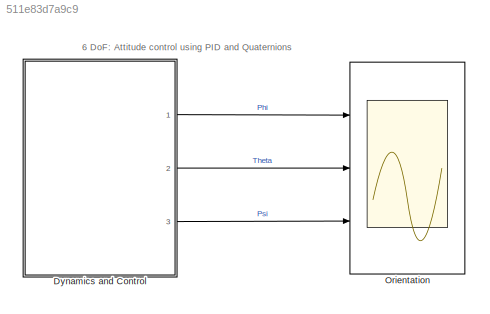
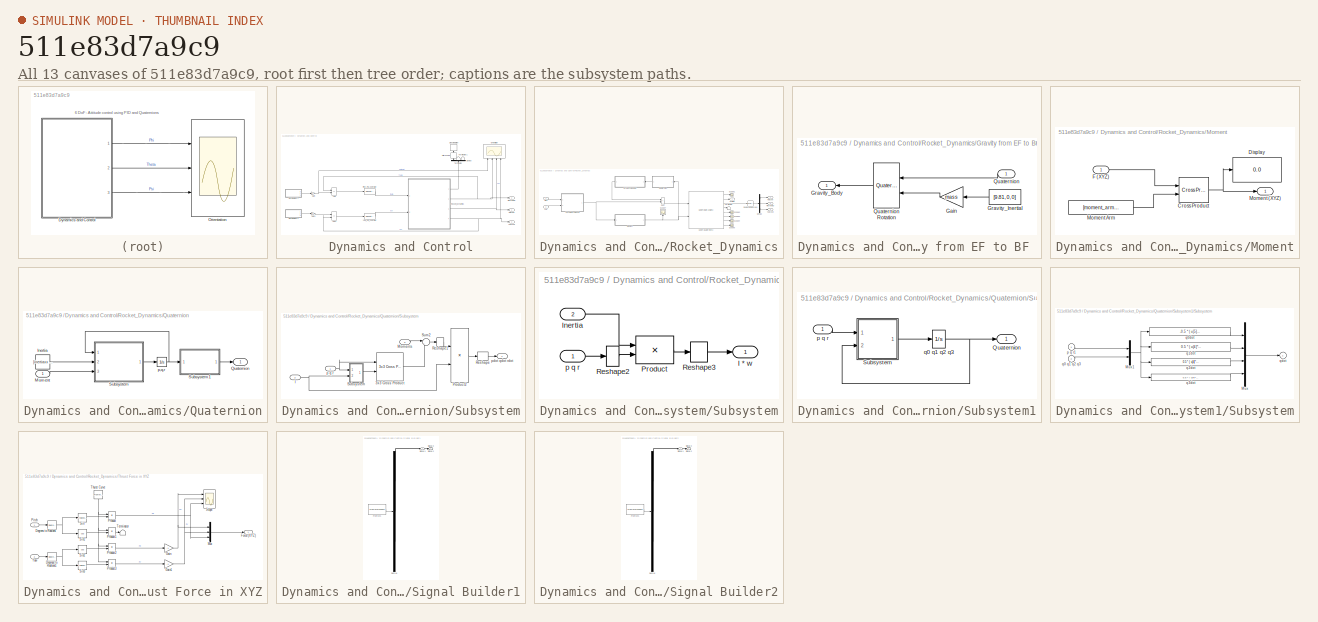
[diagram: thumbnail index - all 13 canvases of the model, root first then tree order]
MODEL slx_511e83d7a9c9
KIND model
CONFIG AbsTol = auto
CONFIG EnableMultiTasking = off
CONFIG FixedStep = auto
CONFIG MaxStep = auto
CONFIG MinStep = auto
CONFIG RelTol = 1e-3
CONFIG SampleTimeConstraint = Unconstrained
CONFIG SolverName = VariableStepAuto
CONFIG StartTime = 0.0
CONFIG StopTime = 4
BLOCK [SubSystem] Dynamics and Control
  Ports = [0, 3]
  RequestExecContextInheritance = off
BLOCK [Sum] Dynamics and Control/Add
  IconShape = rectangular
  Inputs = -+
  Ports = [2, 1]
BLOCK [Sum] Dynamics and Control/Add1
  IconShape = rectangular
  Inputs = +-
  Ports = [2, 1]
BLOCK [Demux] Dynamics and Control/Demux
  NameLocation = right
  Outputs = 3
  Ports = [1, 3]
BLOCK [Gain] Dynamics and Control/Gain
BLOCK [Gain] Dynamics and Control/Gain1
BLOCK [HitCross] Dynamics and Control/Hit Crossing
  HitCrossingDirection = falling
  NameLocation = right
  Ports = [1, 1]
BLOCK [Scope] Dynamics and Control/Orientation
  Floating = off
  NameLocation = top
  NumInputPorts = 4
  Ports = [4]
  ScopeSpecificationString = Simulink.scopes.TimeScopeBlockCfg('CurrentConfiguration', extmgr.ConfigurationSet(extmgr.Configuration('Core','General UI',true),extmgr.Configuration('Core','Source UI',true),extmgr.Configuration('Sources','WiredSimulink',true,'DataLoggingVariableName','ScopeData2'),extmgr.Configuration('Visuals','Time Domain',true,'SerializedDisplays',{struct('MinYLimReal','-0.62535','MaxYLimReal','5.62813','YLab...<+1547ch>
BLOCK [Outport] Dynamics and Control/Pitch (theta)
  Port = 2
BLOCK [Reference] Dynamics and Control/Pitch_PID_Controller  REF=pid_lib/PID Controller
  Ports = [1, 1]
  SourceBlock = pid_lib/PID Controller
  SourceProductBaseCode = SL
  SourceType = PID 1dof
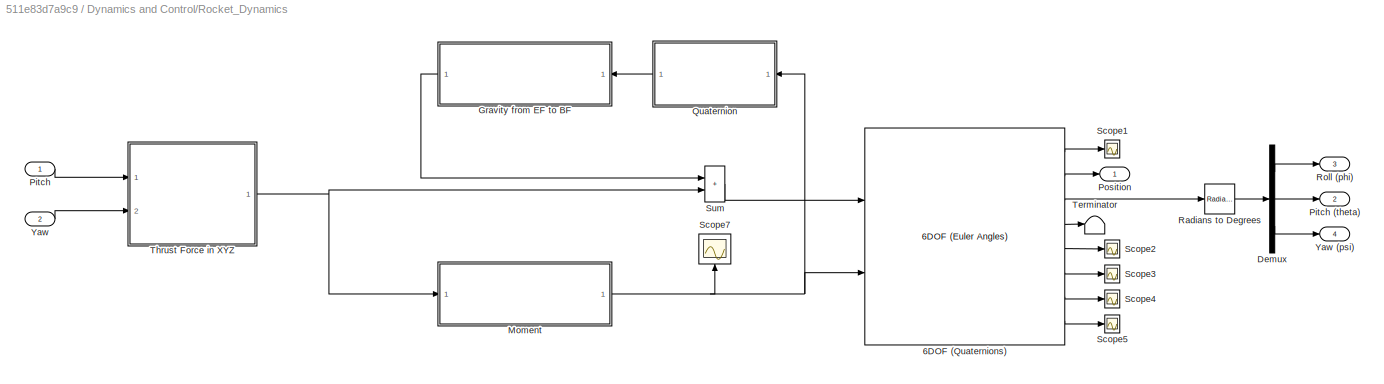
BLOCK [SubSystem] Dynamics and Control/Rocket_Dynamics
  Ports = [2, 4]
  RequestExecContextInheritance = off
BLOCK [Reference] Dynamics and Control/Rocket_Dynamics/6DOF (Quaternions)   REF=shared6dof/6DOF (Euler Angles)
  Ports = [2, 8]
  SourceBlock = shared6dof/6DOF (Euler Angles)
  SourceProductBaseCode = AE,PW,MT,UV,VE,VP
  SourceType = 6DOF EoM (Body Axis)
BLOCK [Demux] Dynamics and Control/Rocket_Dynamics/Demux
  Outputs = 3
  Ports = [1, 3]
BLOCK [SubSystem] Dynamics and Control/Rocket_Dynamics/Gravity from EF to BF 
  Ports = [1, 1]
  RequestExecContextInheritance = off
BLOCK [Gain] Dynamics and Control/Rocket_Dynamics/Gravity from EF to BF /Gain
  Gain = mass
  NameLocation = top
BLOCK [Outport] Dynamics and Control/Rocket_Dynamics/Gravity from EF to BF /Gravity_Body
BLOCK [Constant] Dynamics and Control/Rocket_Dynamics/Gravity from EF to BF /Gravity_Inertial
  Value = [9.81, 0, 0]
BLOCK [Inport] Dynamics and Control/Rocket_Dynamics/Gravity from EF to BF /Quaternion
  NameLocation = top
BLOCK [Reference] Dynamics and Control/Rocket_Dynamics/Gravity from EF to BF /Quaternion Rotation  REF=aerolibutil/Quaternion
Rotation
  NameLocation = top
  Ports = [2, 1]
  SourceBlock = aerolibutil/Quaternion\nRotation
  SourceProductBaseCode = AE
  SourceType = Quaternion Rotation
BLOCK [SubSystem] Dynamics and Control/Rocket_Dynamics/Moment
  Ports = [1, 1]
  RequestExecContextInheritance = off
BLOCK [Reference] Dynamics and Control/Rocket_Dynamics/Moment/Cross Product  REF=vrlib/Utilities/Cross Product
  Ports = [2, 1]
  SourceBlock = vrlib/Utilities/Cross Product
  SourceProductBaseCode = SL
  SourceType = Cross Product
BLOCK [Display] Dynamics and Control/Rocket_Dynamics/Moment/Display
  Decimation = 1
  Ports = [1]
BLOCK [Inport] Dynamics and Control/Rocket_Dynamics/Moment/F (XYZ)
BLOCK [Outport] Dynamics and Control/Rocket_Dynamics/Moment/Moment (XYZ)
BLOCK [Constant] Dynamics and Control/Rocket_Dynamics/Moment/Moment Arm
  Value = [moment_arm, 0, 0]
BLOCK [Inport] Dynamics and Control/Rocket_Dynamics/Pitch
BLOCK [Outport] Dynamics and Control/Rocket_Dynamics/Pitch (theta)
  Port = 2
BLOCK [Outport] Dynamics and Control/Rocket_Dynamics/Position
BLOCK [SubSystem] Dynamics and Control/Rocket_Dynamics/Quaternion
  Ports = [1, 1]
  RequestExecContextInheritance = off
BLOCK [Constant] Dynamics and Control/Rocket_Dynamics/Quaternion/Inertia
  NameLocation = top
  Value = [inertiaxx inertiayy inertiazz].*eye(3)
BLOCK [Inport] Dynamics and Control/Rocket_Dynamics/Quaternion/Moment
  PortDimensions = 3
  Unit = N*m
BLOCK [Outport] Dynamics and Control/Rocket_Dynamics/Quaternion/Quaternion
  VectorParamsAs1DForOutWhenUnconnected = off
BLOCK [SubSystem] Dynamics and Control/Rocket_Dynamics/Quaternion/Subsystem
  Ports = [3, 1]
  RequestExecContextInheritance = off
BLOCK [Reference] Dynamics and Control/Rocket_Dynamics/Quaternion/Subsystem/3x3 Cross Product  REF=sharedutil/3x3 Cross Product
  Ports = [2, 1]
  SourceBlock = sharedutil/3x3 Cross Product
  SourceProductBaseCode = AE,PW,MT,UV,VE,VP
  SourceType = CrossProduct
BLOCK [Inport] Dynamics and Control/Rocket_Dynamics/Quaternion/Subsystem/I
  Port = 2
BLOCK [Inport] Dynamics and Control/Rocket_Dynamics/Quaternion/Subsystem/Moments
  Port = 3
BLOCK [Product] Dynamics and Control/Rocket_Dynamics/Quaternion/Subsystem/Product2
  Inputs = */
  Multiplication = Matrix(*)
  NameLocation = top
  OutDataTypeStr = Inherit: Same as first input
  Ports = [2, 1]
  SaturateOnIntegerOverflow = on
BLOCK [Reshape] Dynamics and Control/Rocket_Dynamics/Quaternion/Subsystem/Reshape
  Ports = [1, 1]
BLOCK [Reshape] Dynamics and Control/Rocket_Dynamics/Quaternion/Subsystem/Reshape1
  OutputDimensionality = Row vector (2-D)
  Ports = [1, 1]
BLOCK [SubSystem] Dynamics and Control/Rocket_Dynamics/Quaternion/Subsystem/Subsystem
  Ports = [2, 1]
  RequestExecContextInheritance = off
BLOCK [Outport] Dynamics and Control/Rocket_Dynamics/Quaternion/Subsystem/Subsystem/I * w
  VectorParamsAs1DForOutWhenUnconnected = off
BLOCK [Inport] Dynamics and Control/Rocket_Dynamics/Quaternion/Subsystem/Subsystem/Inertia
  Port = 2
BLOCK [Product] Dynamics and Control/Rocket_Dynamics/Quaternion/Subsystem/Subsystem/Product
  InputSameDT = on
  Multiplication = Matrix(*)
  OutDataTypeStr = Inherit: Same as first input
  Ports = [2, 1]
  SaturateOnIntegerOverflow = on
BLOCK [Reshape] Dynamics and Control/Rocket_Dynamics/Quaternion/Subsystem/Subsystem/Reshape2
  OutputDimensionality = Column vector (2-D)
  Ports = [1, 1]
BLOCK [Reshape] Dynamics and Control/Rocket_Dynamics/Quaternion/Subsystem/Subsystem/Reshape3
  Ports = [1, 1]
BLOCK [Inport] Dynamics and Control/Rocket_Dynamics/Quaternion/Subsystem/Subsystem/p q r
BLOCK [Sum] Dynamics and Control/Rocket_Dynamics/Quaternion/Subsystem/Sum2
  Inputs = |+-
  Ports = [2, 1]
  SaturateOnIntegerOverflow = on
BLOCK [Inport] Dynamics and Control/Rocket_Dynamics/Quaternion/Subsystem/p q r
BLOCK [Outport] Dynamics and Control/Rocket_Dynamics/Quaternion/Subsystem/pdot qdot rdot
  VectorParamsAs1DForOutWhenUnconnected = off
BLOCK [SubSystem] Dynamics and Control/Rocket_Dynamics/Quaternion/Subsystem1
  Ports = [1, 1]
  RequestExecContextInheritance = off
BLOCK [Outport] Dynamics and Control/Rocket_Dynamics/Quaternion/Subsystem1/Quaternion
  VectorParamsAs1DForOutWhenUnconnected = off
BLOCK [SubSystem] Dynamics and Control/Rocket_Dynamics/Quaternion/Subsystem1/Subsystem
  Ports = [2, 1]
  RequestExecContextInheritance = off
BLOCK [Mux] Dynamics and Control/Rocket_Dynamics/Quaternion/Subsystem1/Subsystem/Mux
  DisplayOption = bar
  Ports = [4, 1]
BLOCK [Mux] Dynamics and Control/Rocket_Dynamics/Quaternion/Subsystem1/Subsystem/Mux1
  DisplayOption = bar
  Inputs = [3 4]
  Ports = [2, 1]
BLOCK [Inport] Dynamics and Control/Rocket_Dynamics/Quaternion/Subsystem1/Subsystem/p q r1
  NameLocation = top
BLOCK [Inport] Dynamics and Control/Rocket_Dynamics/Quaternion/Subsystem1/Subsystem/q0 q1 q2 q3
  Port = 2
  PortDimensions = 4
BLOCK [Fcn] Dynamics and Control/Rocket_Dynamics/Quaternion/Subsystem1/Subsystem/q0dot
  Expr = -0.5 * ( u[5]*u[1]+u[6]*u[2]+u[7]*u[3])
BLOCK [Fcn] Dynamics and Control/Rocket_Dynamics/Quaternion/Subsystem1/Subsystem/q1dot
  Expr = 0.5 * ( u[4]*u[1]+u[6]*u[3]-u[7]*u[2])
BLOCK [Fcn] Dynamics and Control/Rocket_Dynamics/Quaternion/Subsystem1/Subsystem/q2dot
  Expr = 0.5 * ( u[4]*u[2]+u[7]*u[1]-u[5]*u[3])
BLOCK [Fcn] Dynamics and Control/Rocket_Dynamics/Quaternion/Subsystem1/Subsystem/q3dot
  Expr = 0.5 * ( u[4]*u[3]+u[5]*u[2]-u[6]*u[1])
BLOCK [Outport] Dynamics and Control/Rocket_Dynamics/Quaternion/Subsystem1/Subsystem/qdot
  InitialOutput = 0
  VectorParamsAs1DForOutWhenUnconnected = off
BLOCK [Inport] Dynamics and Control/Rocket_Dynamics/Quaternion/Subsystem1/p q r
BLOCK [Integrator] Dynamics and Control/Rocket_Dynamics/Quaternion/Subsystem1/q0 q1 q2 q3
  InitialCondition = [1, 0, 0, 0]
  Ports = [1, 1]
BLOCK [Integrator] Dynamics and Control/Rocket_Dynamics/Quaternion/p,q,r
  Ports = [1, 1]
BLOCK [Reference] Dynamics and Control/Rocket_Dynamics/Radians to Degrees  REF=simulink_extras/Transformations/Radians
to Degrees
  Ports = [1, 1]
  SourceBlock = simulink_extras/Transformations/Radians\nto Degrees
  SourceProductBaseCode = SL
  SourceType = RadiansToDegrees
BLOCK [Outport] Dynamics and Control/Rocket_Dynamics/Roll (phi)
  Port = 3
BLOCK [Scope] Dynamics and Control/Rocket_Dynamics/Scope1
  Floating = off
  NumInputPorts = 1
  Ports = [1]
  ScopeSpecificationString = Simulink.scopes.TimeScopeBlockCfg('CurrentConfiguration', extmgr.ConfigurationSet(extmgr.Configuration('Core','General UI',true),extmgr.Configuration('Core','Source UI',true),extmgr.Configuration('Sources','WiredSimulink',true,'DataLoggingVariableName','ScopeData9'),extmgr.Configuration('Visuals','Time Domain',true,'SerializedDisplays',{struct('MinYLimReal','-87.03252','MaxYLimReal','18.14911','YL...<+1463ch>
BLOCK [Scope] Dynamics and Control/Rocket_Dynamics/Scope2
  Floating = off
  NumInputPorts = 1
  Ports = [1]
  ScopeSpecificationString = Simulink.scopes.TimeScopeBlockCfg('CurrentConfiguration', extmgr.ConfigurationSet(extmgr.Configuration('Core','General UI',true),extmgr.Configuration('Core','Source UI',true),extmgr.Configuration('Sources','WiredSimulink',true,'DataLoggingVariableName','ScopeData10'),extmgr.Configuration('Visuals','Time Domain',true),extmgr.Configuration('Tools','Plot Navigation',true),extmgr.Configuration('Tools'...<+41ch>
BLOCK [Scope] Dynamics and Control/Rocket_Dynamics/Scope3
  Floating = off
  NumInputPorts = 1
  Ports = [1]
  ScopeSpecificationString = Simulink.scopes.TimeScopeBlockCfg('CurrentConfiguration', extmgr.ConfigurationSet(extmgr.Configuration('Core','General UI',true),extmgr.Configuration('Core','Source UI',true),extmgr.Configuration('Sources','WiredSimulink',true,'DataLoggingVariableName','ScopeData1'),extmgr.Configuration('Visuals','Time Domain',true),extmgr.Configuration('Tools','Plot Navigation',true),extmgr.Configuration('Tools',...<+40ch>
BLOCK [Scope] Dynamics and Control/Rocket_Dynamics/Scope4
  Floating = off
  NumInputPorts = 1
  Ports = [1]
  ScopeSpecificationString = Simulink.scopes.TimeScopeBlockCfg('CurrentConfiguration', extmgr.ConfigurationSet(extmgr.Configuration('Core','General UI',true),extmgr.Configuration('Core','Source UI',true),extmgr.Configuration('Sources','WiredSimulink',true,'DataLoggingVariableName','ScopeData12'),extmgr.Configuration('Visuals','Time Domain',true),extmgr.Configuration('Tools','Plot Navigation',true),extmgr.Configuration('Tools'...<+41ch>
BLOCK [Scope] Dynamics and Control/Rocket_Dynamics/Scope5
  Floating = off
  NumInputPorts = 1
  Ports = [1]
  ScopeSpecificationString = Simulink.scopes.TimeScopeBlockCfg('CurrentConfiguration', extmgr.ConfigurationSet(extmgr.Configuration('Core','General UI',true),extmgr.Configuration('Core','Source UI',true),extmgr.Configuration('Sources','WiredSimulink',true,'DataLoggingVariableName','ScopeData13'),extmgr.Configuration('Visuals','Time Domain',true,'SerializedDisplays',{struct('MinYLimReal','-56.49568','MaxYLimReal','17.1773','YL...<+1439ch>
BLOCK [Scope] Dynamics and Control/Rocket_Dynamics/Scope7
  Floating = off
  NameLocation = right
  NumInputPorts = 1
  Ports = [1]
  ScopeSpecificationString = Simulink.scopes.TimeScopeBlockCfg('CurrentConfiguration', extmgr.ConfigurationSet(extmgr.Configuration('Core','General UI',true),extmgr.Configuration('Core','Source UI',true),extmgr.Configuration('Sources','WiredSimulink',true,'DataLoggingVariableName','ScopeData1'),extmgr.Configuration('Visuals','Time Domain',true,'SerializedDisplays',{struct('MinYLimReal','-0.49185','MaxYLimReal','0.48645','YLab...<+1513ch>
BLOCK [Sum] Dynamics and Control/Rocket_Dynamics/Sum
  IconShape = rectangular
  Ports = [2, 1]
BLOCK [Terminator] Dynamics and Control/Rocket_Dynamics/Terminator
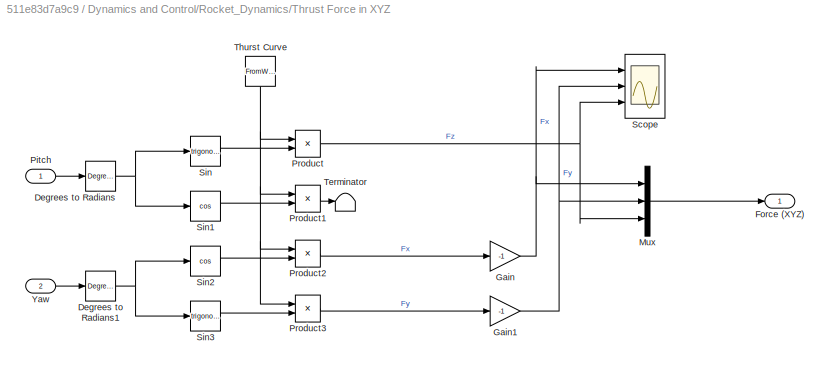
BLOCK [SubSystem] Dynamics and Control/Rocket_Dynamics/Thrust Force in XYZ
  Ports = [2, 1]
  RequestExecContextInheritance = off
BLOCK [Reference] Dynamics and Control/Rocket_Dynamics/Thrust Force in XYZ/Degrees to Radians  REF=simulink_extras/Transformations/Degrees to
Radians
  Ports = [1, 1]
  SourceBlock = simulink_extras/Transformations/Degrees to\nRadians
  SourceProductBaseCode = SL
  SourceType = DegreesToRadians
BLOCK [Reference] Dynamics and Control/Rocket_Dynamics/Thrust Force in XYZ/Degrees to Radians1  REF=simulink_extras/Transformations/Degrees to
Radians
  Ports = [1, 1]
  SourceBlock = simulink_extras/Transformations/Degrees to\nRadians
  SourceProductBaseCode = SL
  SourceType = DegreesToRadians
BLOCK [Outport] Dynamics and Control/Rocket_Dynamics/Thrust Force in XYZ/Force (XYZ)
BLOCK [Gain] Dynamics and Control/Rocket_Dynamics/Thrust Force in XYZ/Gain
  Gain = -1
BLOCK [Gain] Dynamics and Control/Rocket_Dynamics/Thrust Force in XYZ/Gain1
  Gain = -1
BLOCK [Mux] Dynamics and Control/Rocket_Dynamics/Thrust Force in XYZ/Mux
  DisplayOption = bar
  Inputs = 3
  Ports = [3, 1]
BLOCK [Inport] Dynamics and Control/Rocket_Dynamics/Thrust Force in XYZ/Pitch
BLOCK [Product] Dynamics and Control/Rocket_Dynamics/Thrust Force in XYZ/Product
  Ports = [2, 1]
BLOCK [Product] Dynamics and Control/Rocket_Dynamics/Thrust Force in XYZ/Product1
  Ports = [2, 1]
BLOCK [Product] Dynamics and Control/Rocket_Dynamics/Thrust Force in XYZ/Product2
  Ports = [2, 1]
BLOCK [Product] Dynamics and Control/Rocket_Dynamics/Thrust Force in XYZ/Product3
  Ports = [2, 1]
BLOCK [Scope] Dynamics and Control/Rocket_Dynamics/Thrust Force in XYZ/Scope
  Floating = off
  NumInputPorts = 3
  Ports = [3]
  ScopeSpecificationString = Simulink.scopes.TimeScopeBlockCfg('CurrentConfiguration', extmgr.ConfigurationSet(extmgr.Configuration('Core','General UI',true),extmgr.Configuration('Core','Source UI',true),extmgr.Configuration('Sources','WiredSimulink',true),extmgr.Configuration('Visuals','Time Domain',true,'SerializedDisplays',{struct('MinYLimReal','-56.74476','MaxYLimReal','7.81463','YLabelReal','','MinYLimMag','0.00000','Max...<+1363ch>
BLOCK [Trigonometry] Dynamics and Control/Rocket_Dynamics/Thrust Force in XYZ/Sin
  Ports = [1, 1]
BLOCK [Trigonometry] Dynamics and Control/Rocket_Dynamics/Thrust Force in XYZ/Sin1
  Operator = cos
  Ports = [1, 1]
BLOCK [Trigonometry] Dynamics and Control/Rocket_Dynamics/Thrust Force in XYZ/Sin2
  Operator = cos
  Ports = [1, 1]
BLOCK [Trigonometry] Dynamics and Control/Rocket_Dynamics/Thrust Force in XYZ/Sin3
  Ports = [1, 1]
BLOCK [Terminator] Dynamics and Control/Rocket_Dynamics/Thrust Force in XYZ/Terminator
BLOCK [FromWorkspace] Dynamics and Control/Rocket_Dynamics/Thrust Force in XYZ/Thurst Curve
  NameLocation = left
  VariableName = F15
BLOCK [Inport] Dynamics and Control/Rocket_Dynamics/Thrust Force in XYZ/Yaw
  Port = 2
BLOCK [Inport] Dynamics and Control/Rocket_Dynamics/Yaw
  Port = 2
BLOCK [Outport] Dynamics and Control/Rocket_Dynamics/Yaw (psi)
  Port = 4
BLOCK [Outport] Dynamics and Control/Roll (phi)
BLOCK [SubSystem] Dynamics and Control/Signal Builder1
  ClipboardFcn = sigbuilder_block('clipboard');
  CloseFcn = sigbuilder_block('close');
  ContinueFcn = sigbuilder_block('continue');
  CopyFcn = sigbuilder_block('copy');
  DeleteFcn = sigbuilder_block('delete');
  LoadFcn = sigbuilder_block('load');
  MaskHideContents = on
  ModelCloseFcn = sigbuilder_block('modelClose');
  NameChangeFcn = sigbuilder_block('namechange');
  OpenFcn = sigbuilder_block('open',[437.6 199.2 550.4 400 ]);
  PauseFcn = sigbuilder_block('pause');
  Ports = [0, 3]
  PreSaveFcn = sigbuilder_block('preSave');
  RequestExecContextInheritance = off
  StartFcn = sigbuilder_block('start');
  StopFcn = sigbuilder_block('stop');
  Tag = STV Subsys
BLOCK [Demux] Dynamics and Control/Signal Builder1/Demux
  DisplayOption = none
  Outputs = 3
  Ports = [1, 3]
  Tag = STV Demux
BLOCK [FromWorkspace] Dynamics and Control/Signal Builder1/FromWs
  Tag = STV FromWs
  VariableName = tuvar
BLOCK [Outport] Dynamics and Control/Signal Builder1/Signal 1
  Tag = STV Outport
BLOCK [Outport] Dynamics and Control/Signal Builder1/Signal 2
  Port = 2
  Tag = STV Outport
BLOCK [Outport] Dynamics and Control/Signal Builder1/Signal 3
  Port = 3
  Tag = STV Outport
BLOCK [SubSystem] Dynamics and Control/Signal Builder2
  ClipboardFcn = sigbuilder_block('clipboard');
  CloseFcn = sigbuilder_block('close');
  ContinueFcn = sigbuilder_block('continue');
  CopyFcn = sigbuilder_block('copy');
  DeleteFcn = sigbuilder_block('delete');
  LoadFcn = sigbuilder_block('load');
  MaskHideContents = on
  ModelCloseFcn = sigbuilder_block('modelClose');
  NameChangeFcn = sigbuilder_block('namechange');
  OpenFcn = sigbuilder_block('open',[437.6 199.2 550.4 400 ]);
  PauseFcn = sigbuilder_block('pause');
  Ports = [0, 3]
  PreSaveFcn = sigbuilder_block('preSave');
  RequestExecContextInheritance = off
  StartFcn = sigbuilder_block('start');
  StopFcn = sigbuilder_block('stop');
  Tag = STV Subsys
BLOCK [Demux] Dynamics and Control/Signal Builder2/Demux
  DisplayOption = none
  Outputs = 3
  Ports = [1, 3]
  Tag = STV Demux
BLOCK [FromWorkspace] Dynamics and Control/Signal Builder2/FromWs
  Tag = STV FromWs
  VariableName = tuvar
BLOCK [Outport] Dynamics and Control/Signal Builder2/Signal 1
  Tag = STV Outport
BLOCK [Outport] Dynamics and Control/Signal Builder2/Signal 2
  Port = 2
  Tag = STV Outport
BLOCK [Outport] Dynamics and Control/Signal Builder2/Signal 3
  Port = 3
  Tag = STV Outport
BLOCK [Stop] Dynamics and Control/Stop Simulation
  NameLocation = right
BLOCK [Terminator] Dynamics and Control/Terminator
  NameLocation = right
BLOCK [Terminator] Dynamics and Control/Terminator1
  NameLocation = right
BLOCK [Outport] Dynamics and Control/Yaw (psi)
  Port = 3
BLOCK [Reference] Dynamics and Control/Yaw_PID_Controller  REF=pid_lib/PID Controller
  Ports = [1, 1]
  SourceBlock = pid_lib/PID Controller
  SourceProductBaseCode = SL
  SourceType = PID 1dof
BLOCK [Scope] Orientation
  Floating = off
  NumInputPorts = 3
  Ports = [3]
  ScopeSpecificationString = Simulink.scopes.TimeScopeBlockCfg('CurrentConfiguration', extmgr.ConfigurationSet(extmgr.Configuration('Core','General UI',true),extmgr.Configuration('Core','Source UI',true),extmgr.Configuration('Sources','WiredSimulink',true,'DataLoggingVariableName','ScopeData2'),extmgr.Configuration('Visuals','Time Domain',true,'SerializedDisplays',{struct('MinYLimReal','-0.60913','MaxYLimReal','5.45515','YLab...<+1513ch>
ANNOTATION (root): 6 DoF: Attitude control using PID and Quaternions
LINE Dynamics and Control/Add1:1 -> Dynamics and Control/Yaw_PID_Controller:1
LINE Dynamics and Control/Add:1 -> Dynamics and Control/Pitch_PID_Controller:1
LINE Dynamics and Control/Demux:1 -> Dynamics and Control/Hit Crossing:1
LINE Dynamics and Control/Demux:2 -> Dynamics and Control/Terminator:1
LINE Dynamics and Control/Demux:3 -> Dynamics and Control/Terminator1:1
LINE Dynamics and Control/Gain1:1 -> Dynamics and Control/Add1:1
NET Dynamics and Control/Gain:1 -> Dynamics and Control/Add:2, Dynamics and Control/Orientation:1
LINE Dynamics and Control/Hit Crossing:1 -> Dynamics and Control/Stop Simulation:1
LINE Dynamics and Control/Pitch_PID_Controller:1 -> Dynamics and Control/Rocket_Dynamics:1
LINE Dynamics and Control/Rocket_Dynamics/6DOF (Quaternions) :1 -> Dynamics and Control/Rocket_Dynamics/Scope1:1
LINE Dynamics and Control/Rocket_Dynamics/6DOF (Quaternions) :2 -> Dynamics and Control/Rocket_Dynamics/Position:1
LINE Dynamics and Control/Rocket_Dynamics/6DOF (Quaternions) :3 -> Dynamics and Control/Rocket_Dynamics/Radians to Degrees:1
LINE Dynamics and Control/Rocket_Dynamics/6DOF (Quaternions) :4 -> Dynamics and Control/Rocket_Dynamics/Terminator:1
LINE Dynamics and Control/Rocket_Dynamics/6DOF (Quaternions) :5 -> Dynamics and Control/Rocket_Dynamics/Scope2:1
LINE Dynamics and Control/Rocket_Dynamics/6DOF (Quaternions) :6 -> Dynamics and Control/Rocket_Dynamics/Scope3:1
LINE Dynamics and Control/Rocket_Dynamics/6DOF (Quaternions) :7 -> Dynamics and Control/Rocket_Dynamics/Scope4:1
LINE Dynamics and Control/Rocket_Dynamics/6DOF (Quaternions) :8 -> Dynamics and Control/Rocket_Dynamics/Scope5:1
LINE Dynamics and Control/Rocket_Dynamics/Demux:1 -> Dynamics and Control/Rocket_Dynamics/Roll (phi):1
LINE Dynamics and Control/Rocket_Dynamics/Demux:2 -> Dynamics and Control/Rocket_Dynamics/Pitch (theta):1
LINE Dynamics and Control/Rocket_Dynamics/Demux:3 -> Dynamics and Control/Rocket_Dynamics/Yaw (psi):1
LINE Dynamics and Control/Rocket_Dynamics/Gravity from EF to BF /Gain:1 -> Dynamics and Control/Rocket_Dynamics/Gravity from EF to BF /Quaternion Rotation:2
LINE Dynamics and Control/Rocket_Dynamics/Gravity from EF to BF /Gravity_Inertial:1 -> Dynamics and Control/Rocket_Dynamics/Gravity from EF to BF /Gain:1
LINE Dynamics and Control/Rocket_Dynamics/Gravity from EF to BF /Quaternion Rotation:1 -> Dynamics and Control/Rocket_Dynamics/Gravity from EF to BF /Gravity_Body:1
LINE Dynamics and Control/Rocket_Dynamics/Gravity from EF to BF /Quaternion:1 -> Dynamics and Control/Rocket_Dynamics/Gravity from EF to BF /Quaternion Rotation:1
LINE Dynamics and Control/Rocket_Dynamics/Gravity from EF to BF :1 -> Dynamics and Control/Rocket_Dynamics/Sum:1
NET Dynamics and Control/Rocket_Dynamics/Moment/Cross Product:1 -> Dynamics and Control/Rocket_Dynamics/Moment/Display:1, Dynamics and Control/Rocket_Dynamics/Moment/Moment (XYZ):1
LINE Dynamics and Control/Rocket_Dynamics/Moment/F (XYZ):1 -> Dynamics and Control/Rocket_Dynamics/Moment/Cross Product:1
LINE Dynamics and Control/Rocket_Dynamics/Moment/Moment Arm:1 -> Dynamics and Control/Rocket_Dynamics/Moment/Cross Product:2
NET Dynamics and Control/Rocket_Dynamics/Moment:1 -> Dynamics and Control/Rocket_Dynamics/6DOF (Quaternions) :2, Dynamics and Control/Rocket_Dynamics/Quaternion:1, Dynamics and Control/Rocket_Dynamics/Scope7:1
LINE Dynamics and Control/Rocket_Dynamics/Pitch:1 -> Dynamics and Control/Rocket_Dynamics/Thrust Force in XYZ:1
LINE Dynamics and Control/Rocket_Dynamics/Quaternion/Inertia:1 -> Dynamics and Control/Rocket_Dynamics/Quaternion/Subsystem:2
LINE Dynamics and Control/Rocket_Dynamics/Quaternion/Moment:1 -> Dynamics and Control/Rocket_Dynamics/Quaternion/Subsystem:3
LINE Dynamics and Control/Rocket_Dynamics/Quaternion/Subsystem/3x3 Cross Product:1 -> Dynamics and Control/Rocket_Dynamics/Quaternion/Subsystem/Sum2:2
NET Dynamics and Control/Rocket_Dynamics/Quaternion/Subsystem/I:1 -> Dynamics and Control/Rocket_Dynamics/Quaternion/Subsystem/Product2:2, Dynamics and Control/Rocket_Dynamics/Quaternion/Subsystem/Subsystem:2
LINE Dynamics and Control/Rocket_Dynamics/Quaternion/Subsystem/Moments:1 -> Dynamics and Control/Rocket_Dynamics/Quaternion/Subsystem/Sum2:1
LINE Dynamics and Control/Rocket_Dynamics/Quaternion/Subsystem/Product2:1 -> Dynamics and Control/Rocket_Dynamics/Quaternion/Subsystem/Reshape:1
LINE Dynamics and Control/Rocket_Dynamics/Quaternion/Subsystem/Reshape1:1 -> Dynamics and Control/Rocket_Dynamics/Quaternion/Subsystem/Product2:1
LINE Dynamics and Control/Rocket_Dynamics/Quaternion/Subsystem/Reshape:1 -> Dynamics and Control/Rocket_Dynamics/Quaternion/Subsystem/pdot qdot rdot:1
LINE Dynamics and Control/Rocket_Dynamics/Quaternion/Subsystem/Subsystem/Inertia:1 -> Dynamics and Control/Rocket_Dynamics/Quaternion/Subsystem/Subsystem/Product:1
LINE Dynamics and Control/Rocket_Dynamics/Quaternion/Subsystem/Subsystem/Product:1 -> Dynamics and Control/Rocket_Dynamics/Quaternion/Subsystem/Subsystem/Reshape3:1
LINE Dynamics and Control/Rocket_Dynamics/Quaternion/Subsystem/Subsystem/Reshape2:1 -> Dynamics and Control/Rocket_Dynamics/Quaternion/Subsystem/Subsystem/Product:2
LINE Dynamics and Control/Rocket_Dynamics/Quaternion/Subsystem/Subsystem/Reshape3:1 -> Dynamics and Control/Rocket_Dynamics/Quaternion/Subsystem/Subsystem/I * w:1
LINE Dynamics and Control/Rocket_Dynamics/Quaternion/Subsystem/Subsystem/p q r:1 -> Dynamics and Control/Rocket_Dynamics/Quaternion/Subsystem/Subsystem/Reshape2:1
LINE Dynamics and Control/Rocket_Dynamics/Quaternion/Subsystem/Subsystem:1 -> Dynamics and Control/Rocket_Dynamics/Quaternion/Subsystem/3x3 Cross Product:2
LINE Dynamics and Control/Rocket_Dynamics/Quaternion/Subsystem/Sum2:1 -> Dynamics and Control/Rocket_Dynamics/Quaternion/Subsystem/Reshape1:1
NET Dynamics and Control/Rocket_Dynamics/Quaternion/Subsystem/p q r:1 -> Dynamics and Control/Rocket_Dynamics/Quaternion/Subsystem/3x3 Cross Product:1, Dynamics and Control/Rocket_Dynamics/Quaternion/Subsystem/Subsystem:1
NET Dynamics and Control/Rocket_Dynamics/Quaternion/Subsystem1/Subsystem/Mux1:1 -> Dynamics and Control/Rocket_Dynamics/Quaternion/Subsystem1/Subsystem/q0dot:1, Dynamics and Control/Rocket_Dynamics/Quaternion/Subsystem1/Subsystem/q1dot:1, Dynamics and Control/Rocket_Dynamics/Quaternion/Subsystem1/Subsystem/q2dot:1, Dynamics and Control/Rocket_Dynamics/Quaternion/Subsystem1/Subsystem/q3dot:1
LINE Dynamics and Control/Rocket_Dynamics/Quaternion/Subsystem1/Subsystem/Mux:1 -> Dynamics and Control/Rocket_Dynamics/Quaternion/Subsystem1/Subsystem/qdot:1
LINE Dynamics and Control/Rocket_Dynamics/Quaternion/Subsystem1/Subsystem/p q r1:1 -> Dynamics and Control/Rocket_Dynamics/Quaternion/Subsystem1/Subsystem/Mux1:1
LINE Dynamics and Control/Rocket_Dynamics/Quaternion/Subsystem1/Subsystem/q0 q1 q2 q3:1 -> Dynamics and Control/Rocket_Dynamics/Quaternion/Subsystem1/Subsystem/Mux1:2
LINE Dynamics and Control/Rocket_Dynamics/Quaternion/Subsystem1/Subsystem/q0dot:1 -> Dynamics and Control/Rocket_Dynamics/Quaternion/Subsystem1/Subsystem/Mux:1
LINE Dynamics and Control/Rocket_Dynamics/Quaternion/Subsystem1/Subsystem/q1dot:1 -> Dynamics and Control/Rocket_Dynamics/Quaternion/Subsystem1/Subsystem/Mux:2
LINE Dynamics and Control/Rocket_Dynamics/Quaternion/Subsystem1/Subsystem/q2dot:1 -> Dynamics and Control/Rocket_Dynamics/Quaternion/Subsystem1/Subsystem/Mux:3
LINE Dynamics and Control/Rocket_Dynamics/Quaternion/Subsystem1/Subsystem/q3dot:1 -> Dynamics and Control/Rocket_Dynamics/Quaternion/Subsystem1/Subsystem/Mux:4
LINE Dynamics and Control/Rocket_Dynamics/Quaternion/Subsystem1/Subsystem:1 -> Dynamics and Control/Rocket_Dynamics/Quaternion/Subsystem1/q0 q1 q2 q3:1
LINE Dynamics and Control/Rocket_Dynamics/Quaternion/Subsystem1/p q r:1 -> Dynamics and Control/Rocket_Dynamics/Quaternion/Subsystem1/Subsystem:1
NET Dynamics and Control/Rocket_Dynamics/Quaternion/Subsystem1/q0 q1 q2 q3:1 -> Dynamics and Control/Rocket_Dynamics/Quaternion/Subsystem1/Quaternion:1, Dynamics and Control/Rocket_Dynamics/Quaternion/Subsystem1/Subsystem:2
LINE Dynamics and Control/Rocket_Dynamics/Quaternion/Subsystem1:1 -> Dynamics and Control/Rocket_Dynamics/Quaternion/Quaternion:1
LINE Dynamics and Control/Rocket_Dynamics/Quaternion/Subsystem:1 -> Dynamics and Control/Rocket_Dynamics/Quaternion/p,q,r:1
NET Dynamics and Control/Rocket_Dynamics/Quaternion/p,q,r:1 -> Dynamics and Control/Rocket_Dynamics/Quaternion/Subsystem1:1, Dynamics and Control/Rocket_Dynamics/Quaternion/Subsystem:1
LINE Dynamics and Control/Rocket_Dynamics/Quaternion:1 -> Dynamics and Control/Rocket_Dynamics/Gravity from EF to BF :1
LINE Dynamics and Control/Rocket_Dynamics/Radians to Degrees:1 -> Dynamics and Control/Rocket_Dynamics/Demux:1
LINE Dynamics and Control/Rocket_Dynamics/Sum:1 -> Dynamics and Control/Rocket_Dynamics/6DOF (Quaternions) :1
NET Dynamics and Control/Rocket_Dynamics/Thrust Force in XYZ/Degrees to Radians1:1 -> Dynamics and Control/Rocket_Dynamics/Thrust Force in XYZ/Sin2:1, Dynamics and Control/Rocket_Dynamics/Thrust Force in XYZ/Sin3:1
NET Dynamics and Control/Rocket_Dynamics/Thrust Force in XYZ/Degrees to Radians:1 -> Dynamics and Control/Rocket_Dynamics/Thrust Force in XYZ/Sin1:1, Dynamics and Control/Rocket_Dynamics/Thrust Force in XYZ/Sin:1
NET Dynamics and Control/Rocket_Dynamics/Thrust Force in XYZ/Gain1:1 -> Dynamics and Control/Rocket_Dynamics/Thrust Force in XYZ/Mux:2, Dynamics and Control/Rocket_Dynamics/Thrust Force in XYZ/Scope:2
NET Dynamics and Control/Rocket_Dynamics/Thrust Force in XYZ/Gain:1 -> Dynamics and Control/Rocket_Dynamics/Thrust Force in XYZ/Mux:1, Dynamics and Control/Rocket_Dynamics/Thrust Force in XYZ/Scope:1
LINE Dynamics and Control/Rocket_Dynamics/Thrust Force in XYZ/Mux:1 -> Dynamics and Control/Rocket_Dynamics/Thrust Force in XYZ/Force (XYZ):1
LINE Dynamics and Control/Rocket_Dynamics/Thrust Force in XYZ/Pitch:1 -> Dynamics and Control/Rocket_Dynamics/Thrust Force in XYZ/Degrees to Radians:1
LINE Dynamics and Control/Rocket_Dynamics/Thrust Force in XYZ/Product1:1 -> Dynamics and Control/Rocket_Dynamics/Thrust Force in XYZ/Terminator:1
LINE Dynamics and Control/Rocket_Dynamics/Thrust Force in XYZ/Product2:1 -> Dynamics and Control/Rocket_Dynamics/Thrust Force in XYZ/Gain:1
LINE Dynamics and Control/Rocket_Dynamics/Thrust Force in XYZ/Product3:1 -> Dynamics and Control/Rocket_Dynamics/Thrust Force in XYZ/Gain1:1
NET Dynamics and Control/Rocket_Dynamics/Thrust Force in XYZ/Product:1 -> Dynamics and Control/Rocket_Dynamics/Thrust Force in XYZ/Mux:3, Dynamics and Control/Rocket_Dynamics/Thrust Force in XYZ/Scope:3
LINE Dynamics and Control/Rocket_Dynamics/Thrust Force in XYZ/Sin1:1 -> Dynamics and Control/Rocket_Dynamics/Thrust Force in XYZ/Product1:2
LINE Dynamics and Control/Rocket_Dynamics/Thrust Force in XYZ/Sin2:1 -> Dynamics and Control/Rocket_Dynamics/Thrust Force in XYZ/Product2:2
LINE Dynamics and Control/Rocket_Dynamics/Thrust Force in XYZ/Sin3:1 -> Dynamics and Control/Rocket_Dynamics/Thrust Force in XYZ/Product3:2
LINE Dynamics and Control/Rocket_Dynamics/Thrust Force in XYZ/Sin:1 -> Dynamics and Control/Rocket_Dynamics/Thrust Force in XYZ/Product:2
NET Dynamics and Control/Rocket_Dynamics/Thrust Force in XYZ/Thurst Curve:1 -> Dynamics and Control/Rocket_Dynamics/Thrust Force in XYZ/Product1:1, Dynamics and Control/Rocket_Dynamics/Thrust Force in XYZ/Product2:1, Dynamics and Control/Rocket_Dynamics/Thrust Force in XYZ/Product3:1, Dynamics and Control/Rocket_Dynamics/Thrust Force in XYZ/Product:1
LINE Dynamics and Control/Rocket_Dynamics/Thrust Force in XYZ/Yaw:1 -> Dynamics and Control/Rocket_Dynamics/Thrust Force in XYZ/Degrees to Radians1:1
NET Dynamics and Control/Rocket_Dynamics/Thrust Force in XYZ:1 -> Dynamics and Control/Rocket_Dynamics/Moment:1, Dynamics and Control/Rocket_Dynamics/Sum:2
LINE Dynamics and Control/Rocket_Dynamics/Yaw:1 -> Dynamics and Control/Rocket_Dynamics/Thrust Force in XYZ:2
LINE Dynamics and Control/Rocket_Dynamics:1 -> Dynamics and Control/Demux:1
NET Dynamics and Control/Rocket_Dynamics:2 -> Dynamics and Control/Add:1, Dynamics and Control/Orientation:2, Dynamics and Control/Pitch (theta):1
NET Dynamics and Control/Rocket_Dynamics:3 -> Dynamics and Control/Orientation:3, Dynamics and Control/Roll (phi):1
NET Dynamics and Control/Rocket_Dynamics:4 -> Dynamics and Control/Add1:2, Dynamics and Control/Orientation:4, Dynamics and Control/Yaw (psi):1
LINE Dynamics and Control/Signal Builder1:2 -> Dynamics and Control/Gain:1
LINE Dynamics and Control/Signal Builder2:2 -> Dynamics and Control/Gain1:1
LINE Dynamics and Control/Yaw_PID_Controller:1 -> Dynamics and Control/Rocket_Dynamics:2
LINE Dynamics and Control:1 -> Orientation:1
LINE Dynamics and Control:2 -> Orientation:2
LINE Dynamics and Control:3 -> Orientation:3
note: NET lines group one-source signal fan-out (src -> all destinations, sorted); 1:1 wires keep LINE
